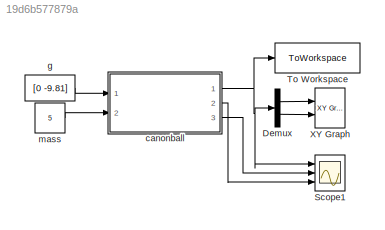
MODEL slx_19d6b577879a
KIND model
CONFIG AbsTol = auto
CONFIG EnableMultiTasking = off
CONFIG FixedStep = auto
CONFIG MaxStep = auto
CONFIG MinStep = auto
CONFIG RelTol = 1e-3
CONFIG SampleTimeConstraint = Unconstrained
CONFIG Solver = VariableStepAuto
CONFIG SolverName = VariableStepAuto
CONFIG StartTime = 0.0
CONFIG StopTime = 10.0
BLOCK [Demux] Demux
  Outputs = 2
  Ports = [1, 2]
BLOCK [Scope] Scope1
  Floating = off
  NumInputPorts = 3
  Ports = [3]
  ScopeSpecificationString = Simulink.scopes.TimeScopeBlockCfg('CurrentConfiguration', extmgr.ConfigurationSet(extmgr.Configuration('Core','General UI',true),extmgr.Configuration('Core','Source UI',true),extmgr.Configuration('Sources','WiredSimulink',true),extmgr.Configuration('Visuals','Time Domain',true,'SerializedDisplays',{struct('MinYLimReal','-1.00000','MaxYLimReal','1.00000','YLabelReal','','MinYLimMag','0.00000','MaxY...<+1489ch>
BLOCK [ToWorkspace] To Workspace
  FixptAsFi = on
  MaxDataPoints = inf
  Ports = [1]
  SampleTime = -1
  VariableName = simout
BLOCK [Reference] XY Graph  REF=simulink/Sinks/XY Graph
  Ports = [2]
  SourceBlock = simulink/Sinks/XY Graph
  SourceProductBaseCode = SL
  SourceType = XY scope.
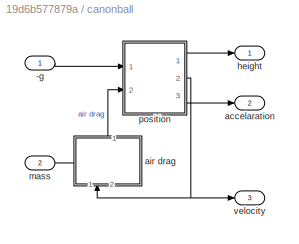
BLOCK [SubSystem] canonball
  Ports = [2, 3]
  RequestExecContextInheritance = off
BLOCK [Inport] canonball/-g
BLOCK [Outport] canonball/accelaration
  Port = 2
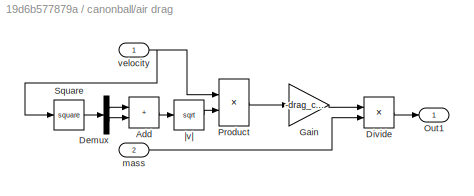
BLOCK [SubSystem] canonball/air drag
  NameLocation = right
  PortSchema = {"entries":[{"content":{"sides":[{"content":{"connectorIds":["In1"]},"type":"ConnectorPlacement.EquallySpacedRectSide","uuid":"eff0201c-5696-466b-9663-78baec171fcf"},{"content":{"connectorIds":["Out1"],"side":"RIGHT"},"type":"ConnectorPlacement.EquallySpacedRectSide","uuid":"e5726ea1-319f-48aa-b213-fbd61e592c3c"},{"content":{"connectorIds":["In2"],"side":"TOP"},"type":"ConnectorPlacement.EquallySp...<+247ch>
  Ports = [2, 1]
  RequestExecContextInheritance = off
BLOCK [Sum] canonball/air drag/Add
  IconShape = rectangular
  Ports = [2, 1]
BLOCK [Demux] canonball/air drag/Demux
  Outputs = 2
  Ports = [1, 2]
BLOCK [Product] canonball/air drag/Divide
  Inputs = */
  Ports = [2, 1]
BLOCK [Gain] canonball/air drag/Gain
  Gain = -drag_coff
BLOCK [Outport] canonball/air drag/Out1
BLOCK [Product] canonball/air drag/Product
  Ports = [2, 1]
BLOCK [Math] canonball/air drag/Square
  Operator = square
  Ports = [1, 1]
BLOCK [Inport] canonball/air drag/mass
  Port = 2
BLOCK [Inport] canonball/air drag/velocity
BLOCK [Sqrt] canonball/air drag/|v|
BLOCK [Outport] canonball/height
BLOCK [Inport] canonball/mass
  Port = 2
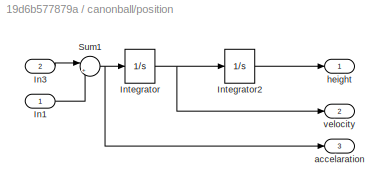
BLOCK [SubSystem] canonball/position
  Ports = [2, 3]
  RequestExecContextInheritance = off
BLOCK [Inport] canonball/position/In1
BLOCK [Inport] canonball/position/In3
  Port = 2
BLOCK [Integrator] canonball/position/Integrator
  InitialCondition = 100*[cosd(theta) sind(theta)]
  Ports = [1, 1]
BLOCK [Integrator] canonball/position/Integrator2
  InitialCondition = [0 0]
  LimitOutput = on
  LowerSaturationLimit = [0 0]
  Ports = [1, 1]
  UpperSaturationLimit = [inf inf]
BLOCK [Sum] canonball/position/Sum1
  Inputs = |++
  Ports = [2, 1]
BLOCK [Outport] canonball/position/accelaration
  Port = 3
BLOCK [Outport] canonball/position/height
BLOCK [Outport] canonball/position/velocity
  Port = 2
BLOCK [Outport] canonball/velocity
  Port = 3
BLOCK [Constant] g
  Value = [0 -9.81]
BLOCK [Constant] mass
  Value = 5
LINE Demux:1 -> XY Graph:1
LINE Demux:2 -> XY Graph:2
LINE canonball/-g:1 -> canonball/position:1
LINE canonball/air drag/Add:1 -> canonball/air drag/|v|:1
LINE canonball/air drag/Demux:1 -> canonball/air drag/Add:1
LINE canonball/air drag/Demux:2 -> canonball/air drag/Add:2
LINE canonball/air drag/Divide:1 -> canonball/air drag/Out1:1
LINE canonball/air drag/Gain:1 -> canonball/air drag/Divide:1
LINE canonball/air drag/Product:1 -> canonball/air drag/Gain:1
LINE canonball/air drag/Square:1 -> canonball/air drag/Demux:1
LINE canonball/air drag/mass:1 -> canonball/air drag/Divide:2
NET canonball/air drag/velocity:1 -> canonball/air drag/Product:1, canonball/air drag/Square:1
LINE canonball/air drag/|v|:1 -> canonball/air drag/Product:2
LINE canonball/air drag:1 -> canonball/position:2
LINE canonball/mass:1 -> canonball/air drag:2
LINE canonball/position/In1:1 -> canonball/position/Sum1:2
LINE canonball/position/In3:1 -> canonball/position/Sum1:1
LINE canonball/position/Integrator2:1 -> canonball/position/height:1
NET canonball/position/Integrator:1 -> canonball/position/Integrator2:1, canonball/position/velocity:1
NET canonball/position/Sum1:1 -> canonball/position/Integrator:1, canonball/position/accelaration:1
LINE canonball/position:1 -> canonball/height:1
NET canonball/position:2 -> canonball/air drag:1, canonball/velocity:1
LINE canonball/position:3 -> canonball/accelaration:1
NET canonball:1 -> Demux:1, Scope1:1, To Workspace:1
LINE canonball:2 -> Scope1:3
LINE canonball:3 -> Scope1:2
LINE g:1 -> canonball:1
LINE mass:1 -> canonball:2
note: NET lines group one-source signal fan-out (src -> all destinations, sorted); 1:1 wires keep LINE
